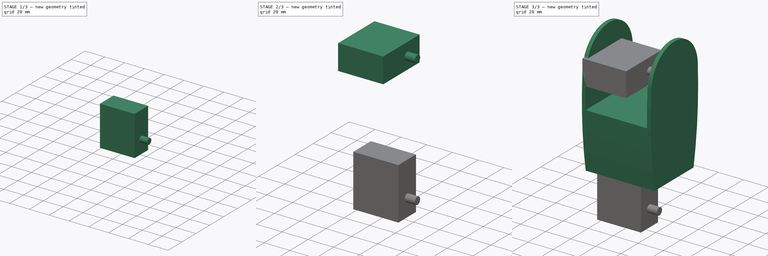
[diagram: build sequence overview — one tinted view per stage of 3, left to right]
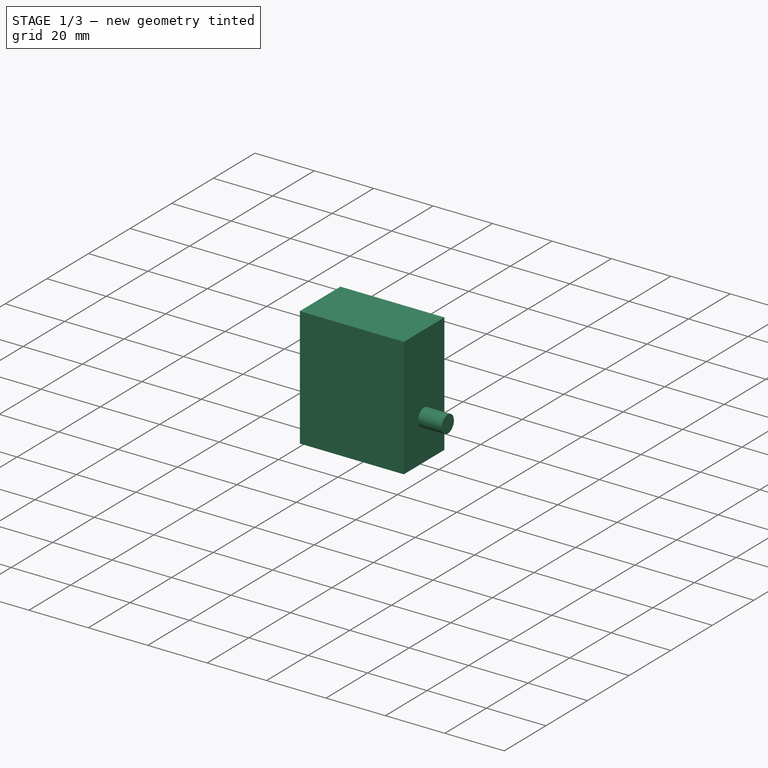
[diagram: stage 1 of 3 — iso view after this stage's code; geometry added in this stage tinted green]
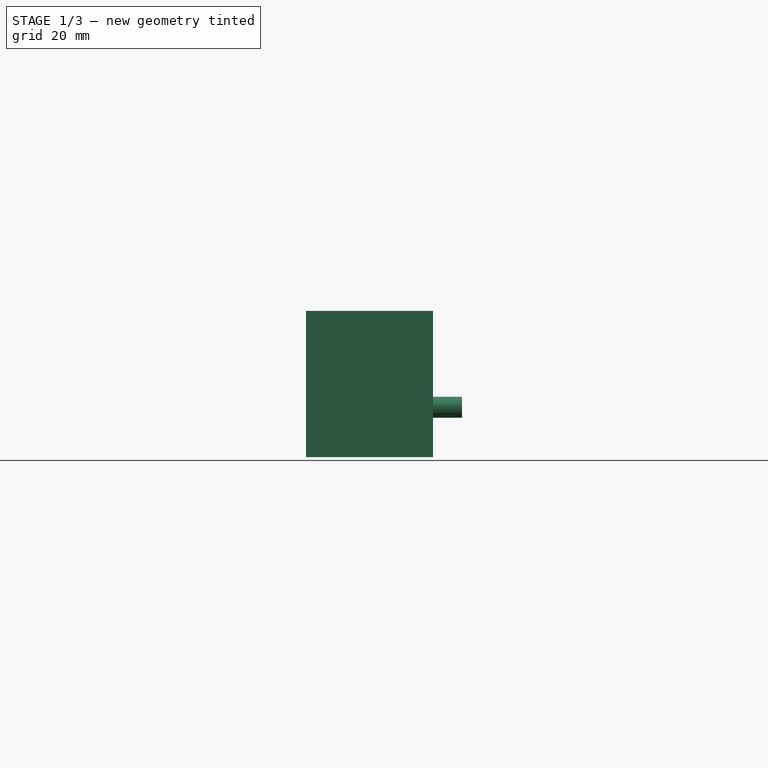
[diagram: stage 1 of 3 — front view after this stage's code; geometry added in this stage tinted green]
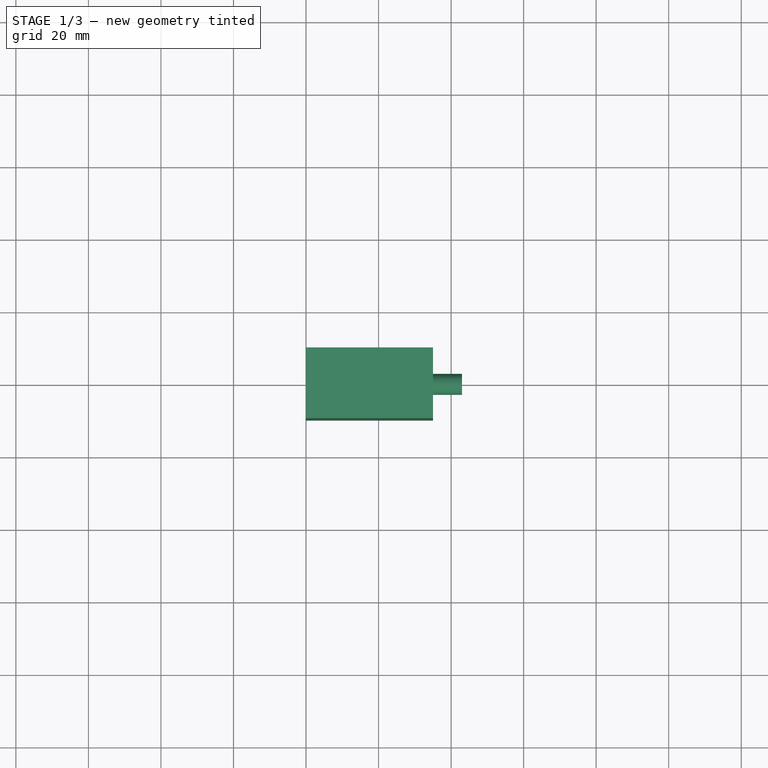
[diagram: stage 1 of 3 — top view after this stage's code; geometry added in this stage tinted green]
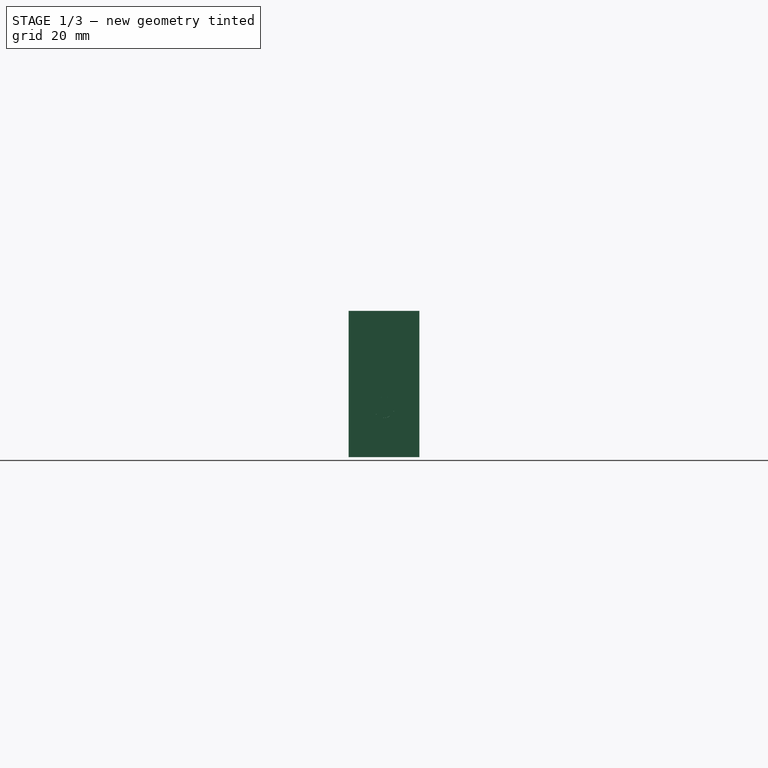
[diagram: stage 1 of 3 — right view after this stage's code; geometry added in this stage tinted green]
FCSTD DOCUMENT  (FreeCAD 0.20R29410 (Git))
Label: upperLeg_v1
License: All rights reserved
LicenseURL: http://en.wikipedia.org/wiki/All_rights_reserved
objects: Sketcher::SketchObject×7, PartDesign::Pad×5, PartDesign::Body×3, PartDesign::Pocket×1
note: 22 computed .brp shape members not serialized (recipe doc carries the construction recipe); baked Part::Feature solids carry a one-line shape summary decoded from their .brp

FEATURE [PartDesign::Body] Body001  label="femurServoBody"
  Group = -> [Sketch005,Pad001,Sketch006,Pad002]
  Origin = -> Origin001
  Placement = pos=(6,0,0) rot=(0,0,1;0rad)
  Tip = -> Pad002
FEATURE [Sketcher::SketchObject] Sketch007
  FullyConstrained = false
  MapMode = 5
  Placement = pos=(0,0,0) rot=(0.57735,0.57735,0.57735;2.0944rad)
  Support = -> [YZ_Plane002]
  sketch-geometry (5):
    g0: LineSegment StartX=-9.75 StartY=27.1602 StartZ=0 EndX=9.75 EndY=27.1602 EndZ=0
    g1: LineSegment StartX=9.75 StartY=27.1602 StartZ=0 EndX=9.75 EndY=-13.1398 EndZ=0
    g2: LineSegment StartX=9.75 StartY=-13.1398 StartZ=0 EndX=-9.75 EndY=-13.1398 EndZ=0
    g3: LineSegment StartX=-9.75 StartY=-13.1398 StartZ=0 EndX=-9.75 EndY=27.1602 EndZ=0
    g4: Circle CenterX=0 CenterY=0.585211 CenterZ=0 NormalX=0 NormalY=0 NormalZ=1 AngleXU=0 Radius=2.9
  constraints (14):
    c: Coincident(g0,g1)
    c: Coincident(g1,g2)
    c: Coincident(g2,g3)
    c: Coincident(g3,g0)
    c: Horizontal(g0)
    c: Horizontal(g2)
    c: Vertical(g1)
    c: Vertical(g3)
    c: DistanceX(g2,g2) = 19.5
    c: DistanceY(g1,g1) = 40.3
    c: Diameter(g4) = 5.8
    c: DistanceY(g2,g4) = 13.725
    c: DistanceX(g4,g1) = 9.75
    c: DistanceX(g-1,g4) = 0
FEATURE [PartDesign::Pad] Pad003
  Direction = (1,-2e-16,3e-16)
  Length = 35
  Length2 = 10
  Placement = pos=(0,0,0) rot=(0.57735,0.57735,0.57735;2.0944rad)
  Profile = -> Sketch007
  ReferenceAxis = -> Sketch007 [N_Axis]
  Type = 0
FEATURE [Sketcher::SketchObject] Sketch008
  FullyConstrained = true
  MapMode = 5
  Placement = pos=(0,0,0) rot=(0.57735,0.57735,0.57735;2.0944rad)
  Support = -> [YZ_Plane002]
  sketch-geometry (1):
    g0: Circle CenterX=0 CenterY=0.59 CenterZ=0 NormalX=0 NormalY=0 NormalZ=1 AngleXU=0 Radius=2.9
  constraints (3):
    c: Diameter(g0) = 5.8
    c: DistanceY(g-1,g0) = 0.59
    c: DistanceX(g-1,g0) = 0
FEATURE [PartDesign::Pad] Pad004
  BaseFeature = -> Pad003
  Direction = (1,-2e-16,3e-16)
  Length = 43
  Length2 = 10
  Placement = pos=(0,0,0) rot=(0.57735,0.57735,0.57735;2.0944rad)
  Profile = -> Sketch008
  ReferenceAxis = -> Sketch008 [N_Axis]
  Type = 0
FEATURE [PartDesign::Body] Body002  label="kneeServoBody"
  Group = -> [Sketch007,Pad003,Sketch008,Pad004]
  Origin = -> Origin002
  Placement = pos=(6,0,0) rot=(0,0,1;0rad)
  Tip = -> Pad004
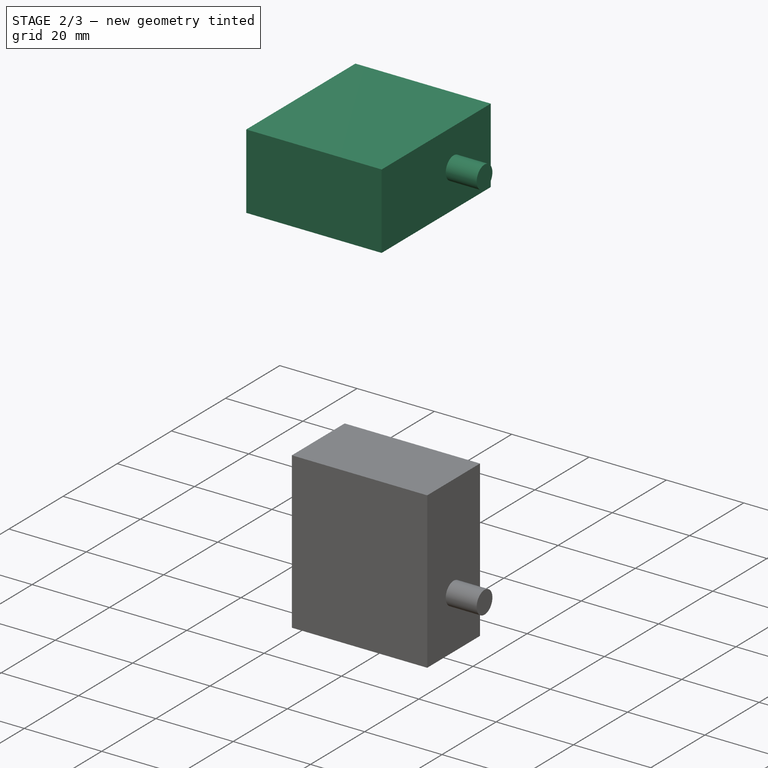
[diagram: stage 2 of 3 — iso view after this stage's code; geometry added in this stage tinted green]
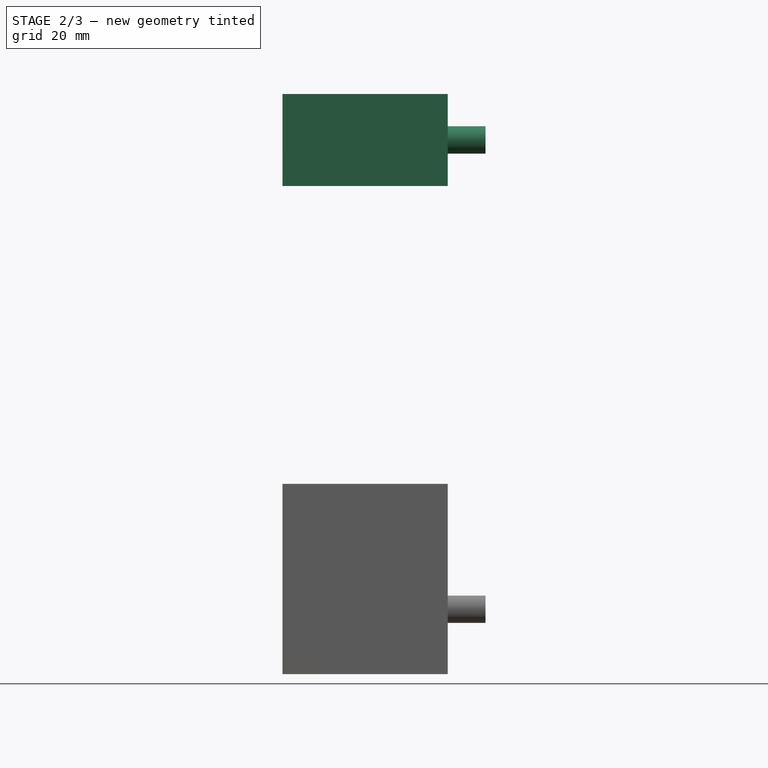
[diagram: stage 2 of 3 — front view after this stage's code; geometry added in this stage tinted green]
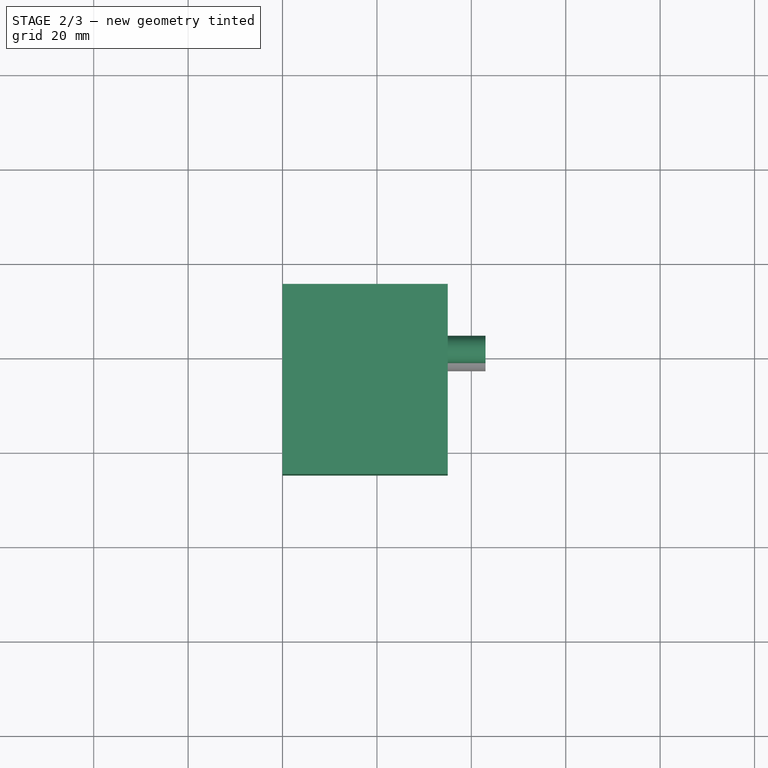
[diagram: stage 2 of 3 — top view after this stage's code; geometry added in this stage tinted green]
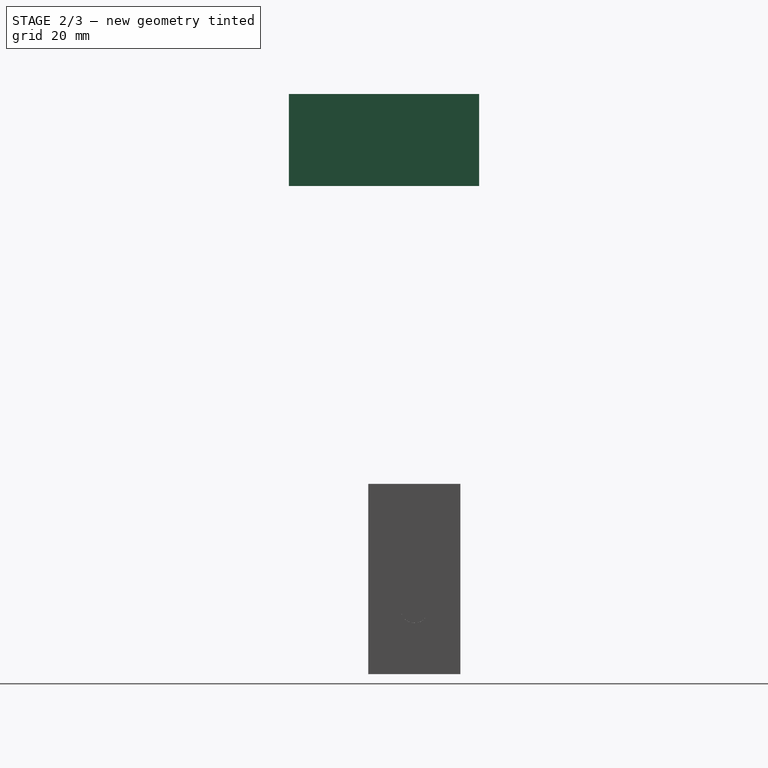
[diagram: stage 2 of 3 — right view after this stage's code; geometry added in this stage tinted green]
FEATURE [PartDesign::Body] Body  label="upperLegBody"
  Group = -> [Sketch,Pad,Sketch003,Pocket]
  Origin = -> Origin
  Tip = -> Pocket
FEATURE [Sketcher::SketchObject] Sketch005
  FullyConstrained = true
  MapMode = 5
  Placement = pos=(0,0,0) rot=(0.57735,0.57735,0.57735;2.0944rad)
  Support = -> [YZ_Plane001]
  sketch-geometry (5):
    g0: Circle CenterX=0 CenterY=100 CenterZ=0 NormalX=0 NormalY=0 NormalZ=1 AngleXU=0 Radius=2.9
    g1: LineSegment StartX=-26.575 StartY=109.75 StartZ=0 EndX=13.725 EndY=109.75 EndZ=0
    g2: LineSegment StartX=13.725 StartY=109.75 StartZ=0 EndX=13.725 EndY=90.25 EndZ=0
    g3: LineSegment StartX=13.725 StartY=90.25 StartZ=0 EndX=-26.575 EndY=90.25 EndZ=0
    g4: LineSegment StartX=-26.575 StartY=90.25 StartZ=0 EndX=-26.575 EndY=109.75 EndZ=0
  constraints (15):
    c: PointOnObject(g0,g-2)
    c: Diameter(g0) = 5.8
    c: Coincident(g1,g2)
    c: Coincident(g2,g3)
    c: Coincident(g3,g4)
    c: Coincident(g4,g1)
    c: Horizontal(g1)
    c: Horizontal(g3)
    c: Vertical(g2)
    c: Vertical(g4)
    c: DistanceY(g2,g2) = 19.5
    c: DistanceX(g1,g1) = 40.3
    c: DistanceX(g0,g1) = 13.725
    c: DistanceY(g0,g1) = 9.75
    c: DistanceY(g-1,g0) = 100
FEATURE [PartDesign::Pad] Pad001
  Direction = (1,-2e-16,3e-16)
  Length = 35
  Length2 = 10
  Placement = pos=(0,0,0) rot=(0.57735,0.57735,0.57735;2.0944rad)
  Profile = -> Sketch005
  ReferenceAxis = -> Sketch005 [N_Axis]
  Type = 0
FEATURE [Sketcher::SketchObject] Sketch006
  FullyConstrained = true
  MapMode = 5
  Placement = pos=(0,0,0) rot=(0.57735,0.57735,0.57735;2.0944rad)
  Support = -> [YZ_Plane001]
  sketch-geometry (1):
    g0: Circle CenterX=0 CenterY=100 CenterZ=0 NormalX=0 NormalY=0 NormalZ=1 AngleXU=0 Radius=2.9
  constraints (3):
    c: PointOnObject(g0,g-2)
    c: Diameter(g0) = 5.8
    c: DistanceY(g-1,g0) = 100
FEATURE [PartDesign::Pad] Pad002
  BaseFeature = -> Pad001
  Direction = (1,-2e-16,3e-16)
  Length = 43
  Length2 = 10
  Placement = pos=(0,0,0) rot=(0.57735,0.57735,0.57735;2.0944rad)
  Profile = -> Sketch006
  ReferenceAxis = -> Sketch006 [N_Axis]
  Type = 0
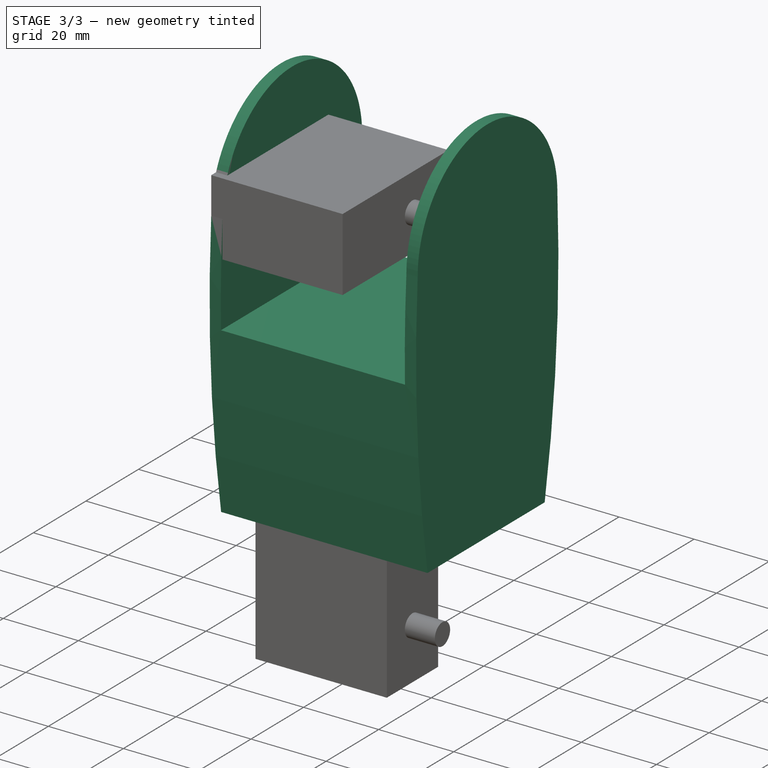
[diagram: stage 3 of 3 — iso view after this stage's code; geometry added in this stage tinted green]
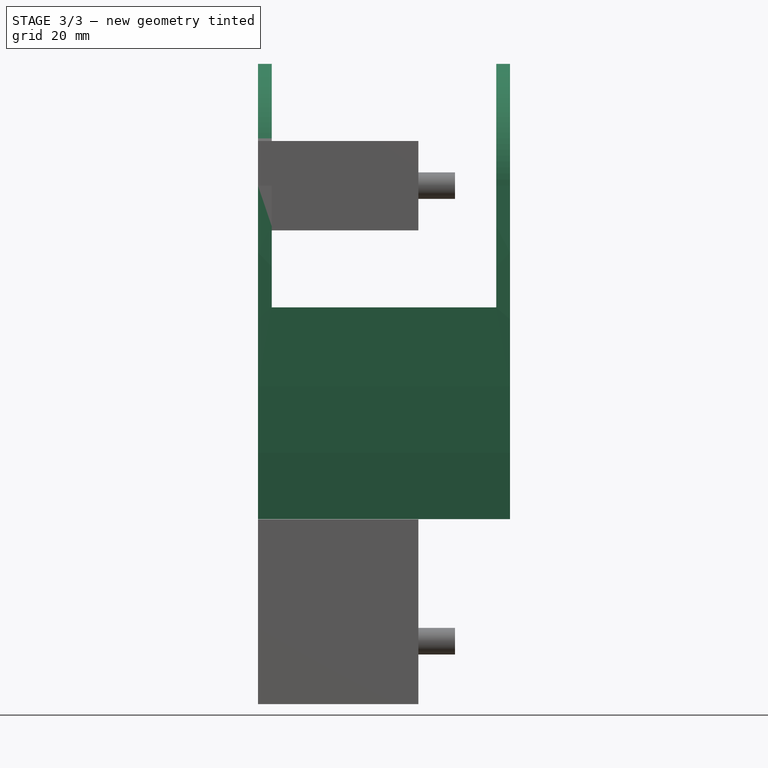
[diagram: stage 3 of 3 — front view after this stage's code; geometry added in this stage tinted green]
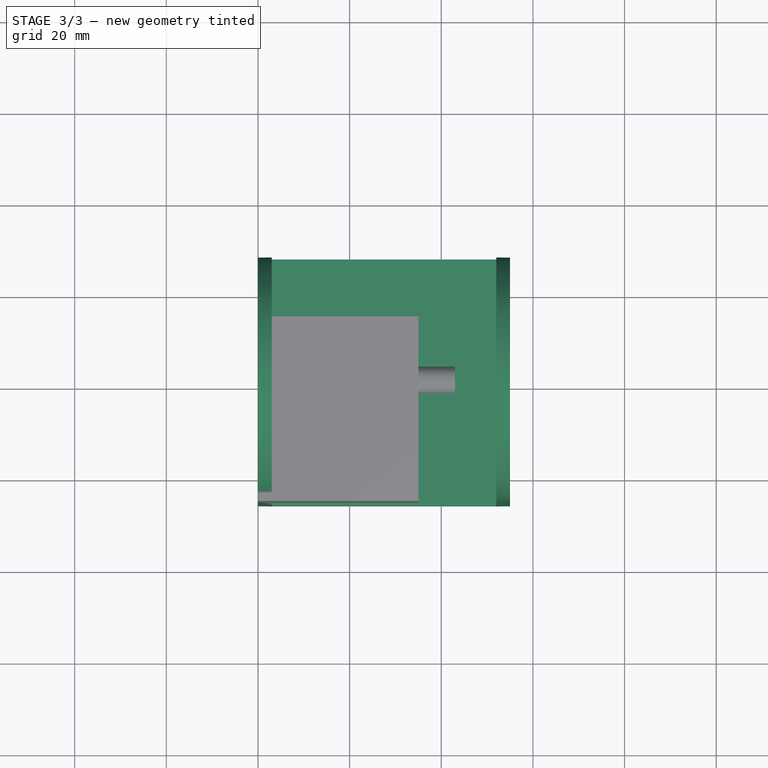
[diagram: stage 3 of 3 — top view after this stage's code; geometry added in this stage tinted green]
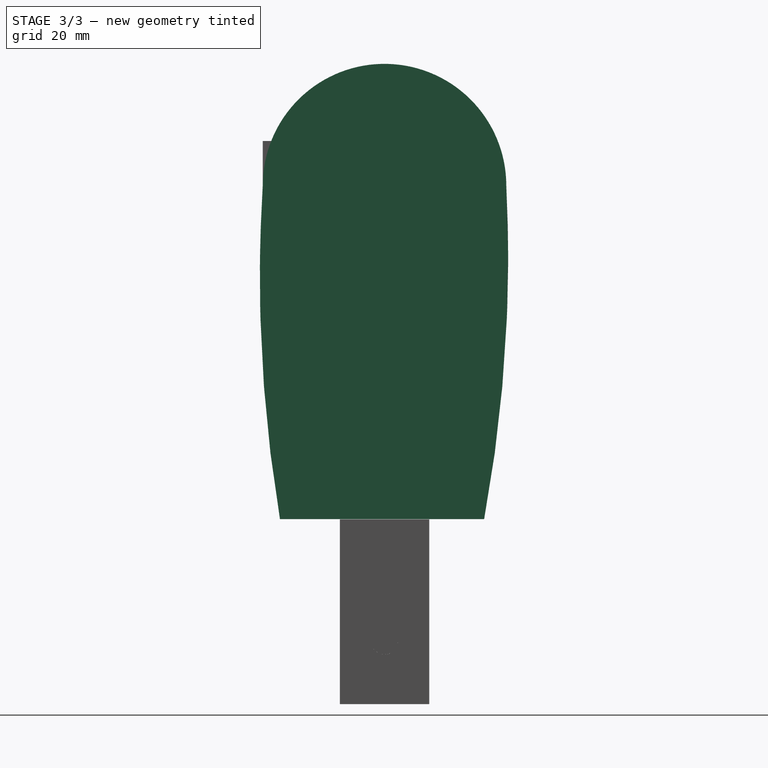
[diagram: stage 3 of 3 — right view after this stage's code; geometry added in this stage tinted green]
FEATURE [Sketcher::SketchObject] Sketch
  FullyConstrained = false
  MapMode = 5
  Placement = pos=(0,0,0) rot=(0.57735,0.57735,0.57735;2.0944rad)
  Support = -> [YZ_Plane]
  sketch-geometry (4):
    g0: ArcOfCircle CenterX=0 CenterY=100 CenterZ=0 NormalX=0 NormalY=0 NormalZ=1 AngleXU=0 Radius=26.575 StartAngle=4.73241e-09 EndAngle=3.14159
    g1: ArcOfCircle CenterX=-287.369 CenterY=84.2995 CenterZ=0 NormalX=0 NormalY=0 NormalZ=1 AngleXU=0 Radius=314.337 StartAngle=6.10062 EndAngle=6.33315
    g2: ArcOfCircle CenterX=293.081 CenterY=80.018 CenterZ=0 NormalX=0 NormalY=0 NormalZ=1 AngleXU=0 Radius=320.28 StartAngle=3.07916 EndAngle=3.30716
    g3: LineSegment StartX=-22.819 StartY=27.2311 StartZ=0 EndX=21.7435 EndY=27.2311 EndZ=0
  constraints (8):
    c: PointOnObject(g0,g-2)
    c: Diameter(g0) = 53.15
    c: DistanceX(g0,g0) = 53.15
    c: Coincident(g1,g0)
    c: Coincident(g2,g0)
    c: Coincident(g3,g2)
    c: Coincident(g3,g1)
    c: Horizontal(g3)
FEATURE [Sketcher::SketchObject] Sketch001
  FullyConstrained = true
  MapMode = 5
  Placement = pos=(0,0,0) rot=(0.57735,0.57735,0.57735;2.0944rad)
  Support = -> [YZ_Plane001]
  sketch-geometry (5):
    g0: LineSegment StartX=-26.575 StartY=109.75 StartZ=0 EndX=13.725 EndY=109.75 EndZ=0
    g1: LineSegment StartX=13.725 StartY=109.75 StartZ=0 EndX=13.725 EndY=90.25 EndZ=0
    g2: LineSegment StartX=13.725 StartY=90.25 StartZ=0 EndX=-26.575 EndY=90.25 EndZ=0
    g3: LineSegment StartX=-26.575 StartY=90.25 StartZ=0 EndX=-26.575 EndY=109.75 EndZ=0
    g4: Circle CenterX=0 CenterY=100 CenterZ=0 NormalX=0 NormalY=0 NormalZ=1 AngleXU=0 Radius=2.9
  constraints (15):
    c: Coincident(g0,g1)
    c: Coincident(g1,g2)
    c: Coincident(g2,g3)
    c: Coincident(g3,g0)
    c: Horizontal(g0)
    c: Horizontal(g2)
    c: Vertical(g1)
    c: Vertical(g3)
    c: DistanceX(g0,g0) = 40.3
    c: DistanceY(g1,g1) = 19.5
    c: PointOnObject(g4,g-2)
    c: Diameter(g4) = 5.8
    c: DistanceX(g4,g0) = 13.725
    c: DistanceY(g4,g0) = 9.75
    c: DistanceY(g-1,g4) = 100
FEATURE [Sketcher::SketchObject] Sketch003
  AttachmentOffset = pos=(3,0,-50) rot=(0,0,1;0rad)
  FullyConstrained = true
  MapMode = 5
  Placement = pos=(3,50,1.11e-14) rot=(1,0,0;1.5708rad)
  Support = -> [XZ_Plane]
  sketch-geometry (4):
    g0: LineSegment StartX=0 StartY=126.575 StartZ=0 EndX=49 EndY=126.575 EndZ=0
    g1: LineSegment StartX=49 StartY=126.575 StartZ=0 EndX=49 EndY=73.425 EndZ=0
    g2: LineSegment StartX=49 StartY=73.425 StartZ=0 EndX=0 EndY=73.425 EndZ=0
    g3: LineSegment StartX=0 StartY=73.425 StartZ=0 EndX=0 EndY=126.575 EndZ=0
  constraints (12):
    c: Coincident(g0,g1)
    c: Coincident(g1,g2)
    c: Coincident(g2,g3)
    c: Coincident(g3,g0)
    c: Horizontal(g0)
    c: Horizontal(g2)
    c: Vertical(g1)
    c: Vertical(g3)
    c: PointOnObject(g0,g-2)
    c: DistanceX(g0,g0) = 49
    c: DistanceY(g1,g1) = 53.15
    c: DistanceY(g-1,g0) = 126.575
FEATURE [PartDesign::Pad] Pad
  Direction = (1,-2e-16,3e-16)
  Length = 55
  Length2 = 10
  Placement = pos=(0,0,0) rot=(0.57735,0.57735,0.57735;2.0944rad)
  Profile = -> Sketch
  ReferenceAxis = -> Sketch [N_Axis]
  Type = 0
FEATURE [PartDesign::Pocket] Pocket
  BaseFeature = -> Pad
  Direction = (0,1,2e-16)
  Length = 100
  Length2 = 5
  Placement = pos=(0,0,0) rot=(0.57735,0.57735,0.57735;2.0944rad)
  Profile = -> Sketch003
  ReferenceAxis = -> Sketch003 [N_Axis]
  Reversed = true
  Type = 0
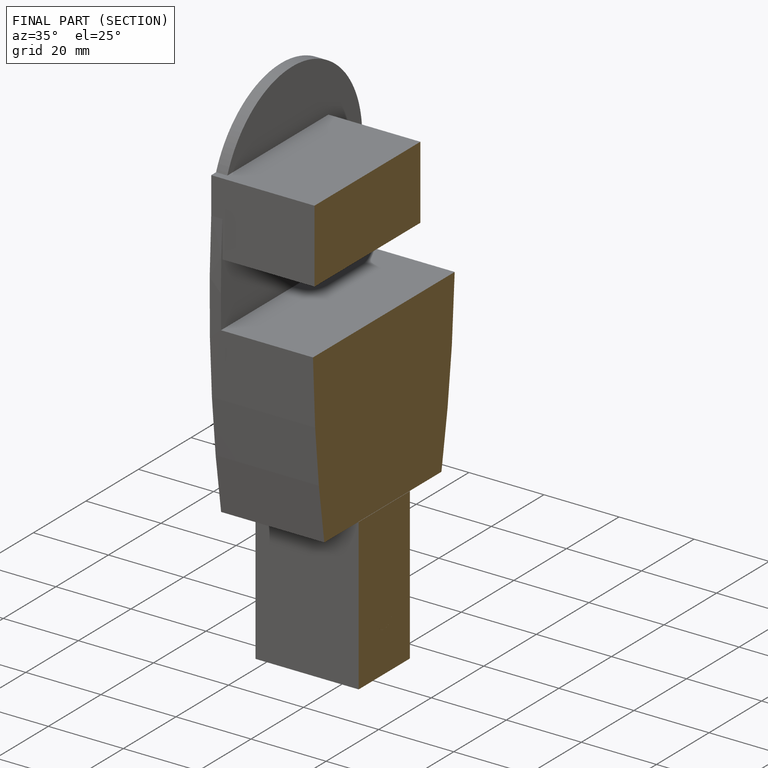
[diagram: finished part — half-section view (interior)]
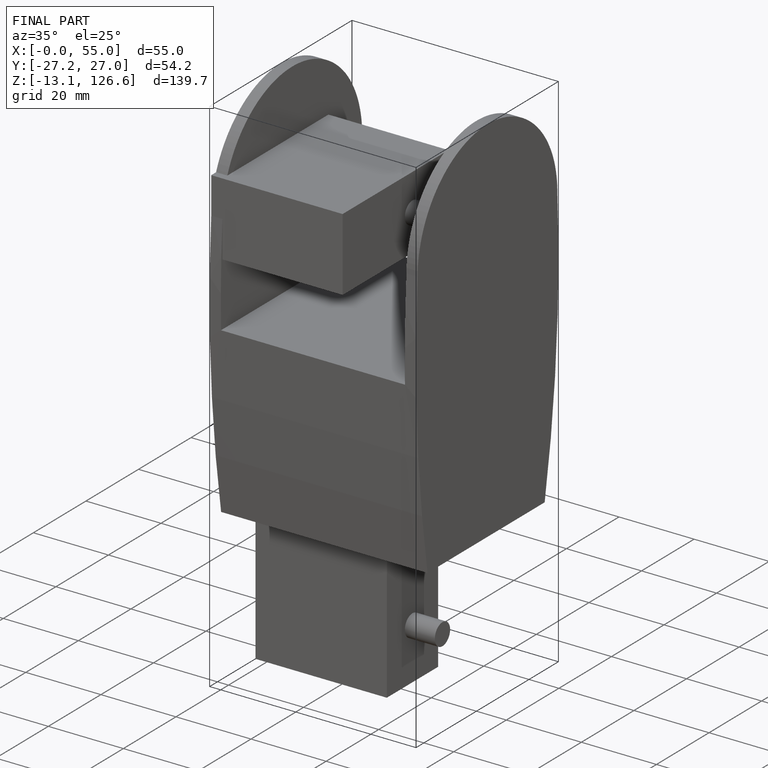
[diagram: finished part — iso view with bounding-box wireframe]
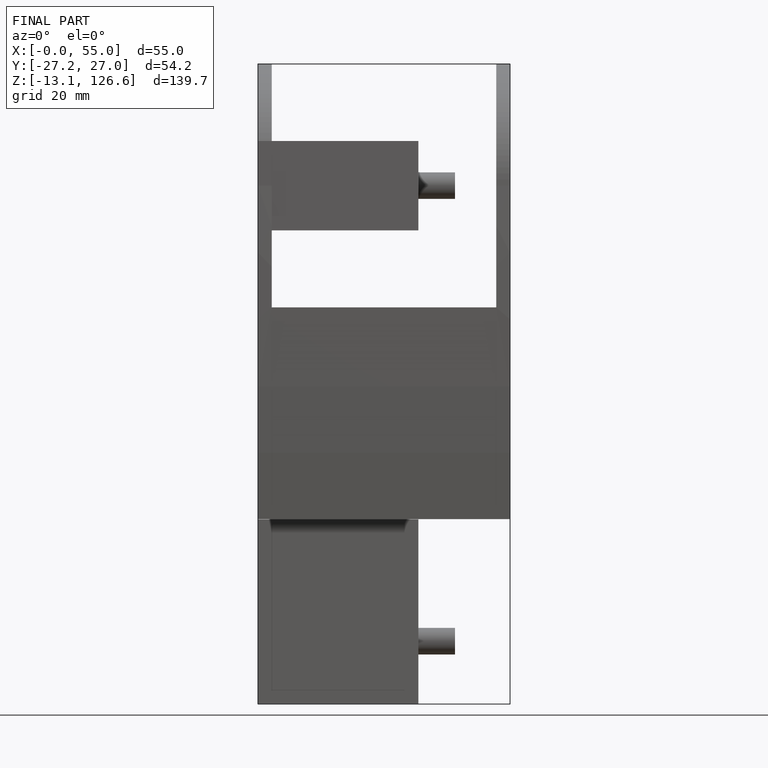
[diagram: finished part — front view with bounding-box wireframe]
